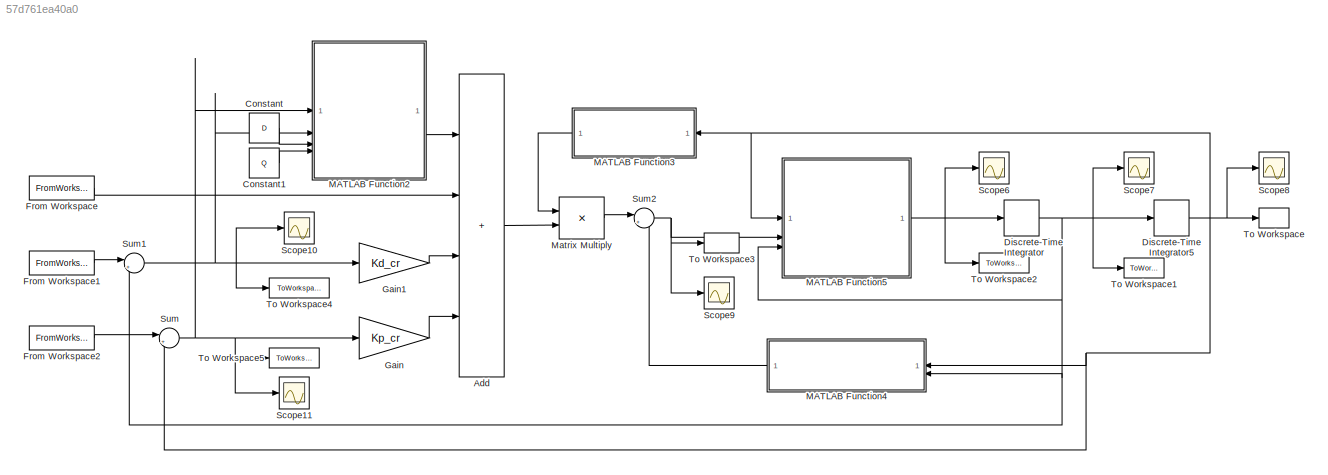
MODEL slx_57d761ea40a0
KIND model
CONFIG AbsTol = auto
CONFIG EnableMultiTasking = off
CONFIG FixedStep = auto
CONFIG MaxStep = auto
CONFIG MinStep = auto
CONFIG RelTol = 1e-3
CONFIG SampleTimeConstraint = Unconstrained
CONFIG SolverName = VariableStepAuto
CONFIG StartTime = 0.0
CONFIG StopTime = 40
BLOCK [Sum] Add
  IconShape = rectangular
  Inputs = ++++
BLOCK [Constant] Constant
  Value = D
  VectorParams1D = off
BLOCK [Constant] Constant1
  Value = Q
  VectorParams1D = off
BLOCK [DiscreteIntegrator] Discrete-Time Integrator
  ICPrevOutput = DiscIntNeverNeededParam
  ICPrevScaledInput = DiscIntNeverNeededParam
  InitialCondition = [0 0 0 0]'
  InitialConditionSetting = Auto
  SampleTime = -1
BLOCK [DiscreteIntegrator] Discrete-Time Integrator5
  ICPrevOutput = DiscIntNeverNeededParam
  ICPrevScaledInput = DiscIntNeverNeededParam
  InitialCondition = [theta1_0 theta2_0 -0.25 0]'
  InitialConditionSetting = Auto
  SampleTime = -1
BLOCK [FromWorkspace] From Workspace
  SampleTime = T
  VariableName = q_d_dot_dot
BLOCK [FromWorkspace] From Workspace1
  SampleTime = T
  VariableName = q_d_dot
BLOCK [FromWorkspace] From Workspace2
  SampleTime = T
  VariableName = q_d
BLOCK [Gain] Gain
  Gain = Kp_cr
  Multiplication = Matrix(K*u)
BLOCK [Gain] Gain1
  Gain = Kd_cr
  Multiplication = Matrix(K*u)
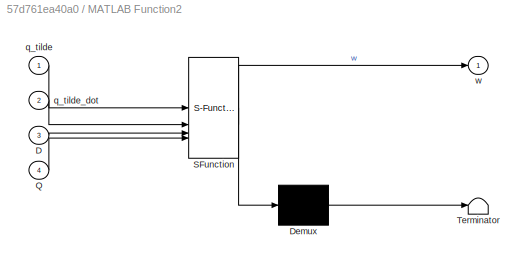
BLOCK [SubSystem] MATLAB Function2
  ErrorFcn = Stateflow.Translate.translate
  LibrarySourceBlock = simulink/User-Defined\nFunctions/MATLAB Function
  PermitHierarchicalResolution = ExplicitOnly
  SFBlockType = MATLAB Function
  TreatAsAtomicUnit = on
BLOCK [Demux] MATLAB Function2/ Demux 
  Outputs = 1
BLOCK [S-Function] MATLAB Function2/ SFunction 
  EnableBusSupport = on
  FunctionName = sf_sfun
  PortCounts = [4 2]
  SFcnIsStateOwnerBlock = off
  SFunctionDeploymentMode = off
  Tag = Stateflow S-Function 2
BLOCK [Terminator] MATLAB Function2/ Terminator 
BLOCK [Inport] MATLAB Function2/D
  Port = 3
BLOCK [Inport] MATLAB Function2/Q
  Port = 4
BLOCK [Inport] MATLAB Function2/q_tilde
BLOCK [Inport] MATLAB Function2/q_tilde_dot
  Port = 2
BLOCK [Outport] MATLAB Function2/w
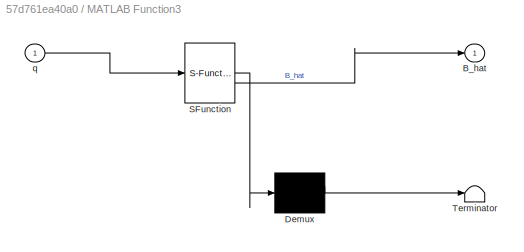
BLOCK [SubSystem] MATLAB Function3
  ErrorFcn = Stateflow.Translate.translate
  LibrarySourceBlock = simulink/User-Defined\nFunctions/MATLAB Function
  NameLocation = top
  PermitHierarchicalResolution = ExplicitOnly
  SFBlockType = MATLAB Function
  TreatAsAtomicUnit = on
BLOCK [Demux] MATLAB Function3/ Demux 
  Outputs = 1
BLOCK [S-Function] MATLAB Function3/ SFunction 
  EnableBusSupport = on
  FunctionName = sf_sfun
  PortCounts = [1 2]
  SFcnIsStateOwnerBlock = off
  SFunctionDeploymentMode = off
  Tag = Stateflow S-Function 1
BLOCK [Terminator] MATLAB Function3/ Terminator 
BLOCK [Outport] MATLAB Function3/B_hat
BLOCK [Inport] MATLAB Function3/q
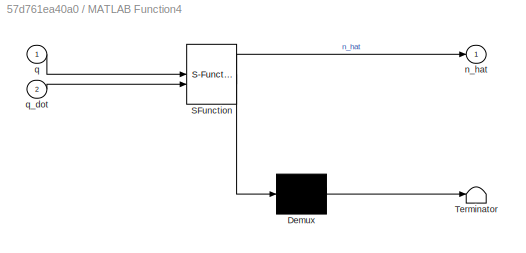
BLOCK [SubSystem] MATLAB Function4
  ErrorFcn = Stateflow.Translate.translate
  LibrarySourceBlock = simulink/User-Defined\nFunctions/MATLAB Function
  NameLocation = top
  PermitHierarchicalResolution = ExplicitOnly
  SFBlockType = MATLAB Function
  TreatAsAtomicUnit = on
BLOCK [Demux] MATLAB Function4/ Demux 
  Outputs = 1
BLOCK [S-Function] MATLAB Function4/ SFunction 
  EnableBusSupport = on
  FunctionName = sf_sfun
  PortCounts = [2 2]
  SFcnIsStateOwnerBlock = off
  SFunctionDeploymentMode = off
  Tag = Stateflow S-Function 3
BLOCK [Terminator] MATLAB Function4/ Terminator 
BLOCK [Outport] MATLAB Function4/n_hat
BLOCK [Inport] MATLAB Function4/q
BLOCK [Inport] MATLAB Function4/q_dot
  Port = 2
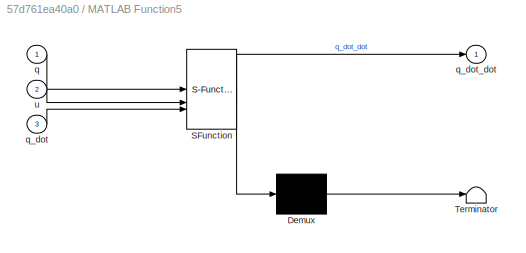
BLOCK [SubSystem] MATLAB Function5
  ErrorFcn = Stateflow.Translate.translate
  LibrarySourceBlock = simulink/User-Defined\nFunctions/MATLAB Function
  PermitHierarchicalResolution = ExplicitOnly
  SFBlockType = MATLAB Function
  TreatAsAtomicUnit = on
BLOCK [Demux] MATLAB Function5/ Demux 
  Outputs = 1
BLOCK [S-Function] MATLAB Function5/ SFunction 
  EnableBusSupport = on
  FunctionName = sf_sfun
  PortCounts = [3 2]
  SFcnIsStateOwnerBlock = off
  SFunctionDeploymentMode = off
  Tag = Stateflow S-Function 4
BLOCK [Terminator] MATLAB Function5/ Terminator 
BLOCK [Inport] MATLAB Function5/q
BLOCK [Inport] MATLAB Function5/q_dot
  Port = 3
BLOCK [Outport] MATLAB Function5/q_dot_dot
BLOCK [Inport] MATLAB Function5/u
  Port = 2
BLOCK [Product] Matrix Multiply
  Multiplication = Matrix(*)
BLOCK [Scope] Scope10
  Floating = off
  NumInputPorts = 1
  ScopeSpecificationString = Simulink.scopes.TimeScopeBlockCfg('CurrentConfiguration', extmgr.ConfigurationSet(extmgr.Configuration('Core','General UI',true),extmgr.Configuration('Core','Source UI',true),extmgr.Configuration('Sources','WiredSimulink',true,'DataLoggingVariableName','ScopeData5'),extmgr.Configuration('Visuals','Time Domain',true,'SerializedDisplays',{struct('MinYLimReal','-0.01289','MaxYLimReal','0.00249','YLab...<+1417ch>
BLOCK [Scope] Scope11
  Floating = off
  NumInputPorts = 1
  ScopeSpecificationString = Simulink.scopes.TimeScopeBlockCfg('CurrentConfiguration', extmgr.ConfigurationSet(extmgr.Configuration('Core','General UI',true),extmgr.Configuration('Core','Source UI',true),extmgr.Configuration('Sources','WiredSimulink',true,'DataLoggingVariableName','ScopeData6'),extmgr.Configuration('Visuals','Time Domain',true,'SerializedDisplays',{struct('MinYLimReal','-0.00027','MaxYLimReal','0.00021','YLab...<+1413ch>
BLOCK [Scope] Scope6
  Floating = off
  NumInputPorts = 1
  ScopeSpecificationString = Simulink.scopes.TimeScopeBlockCfg('CurrentConfiguration', extmgr.ConfigurationSet(extmgr.Configuration('Core','General UI',true),extmgr.Configuration('Core','Source UI',true),extmgr.Configuration('Sources','WiredSimulink',true,'DataLoggingVariableName','ScopeData1'),extmgr.Configuration('Visuals','Time Domain',true,'SerializedDisplays',{struct('MinYLimReal','-2.18153','MaxYLimReal','8.166','YLabel...<+1468ch>
BLOCK [Scope] Scope7
  Floating = off
  NumInputPorts = 1
  ScopeSpecificationString = Simulink.scopes.TimeScopeBlockCfg('CurrentConfiguration', extmgr.ConfigurationSet(extmgr.Configuration('Core','General UI',true),extmgr.Configuration('Core','Source UI',true),extmgr.Configuration('Sources','WiredSimulink',true,'DataLoggingVariableName','ScopeData2'),extmgr.Configuration('Visuals','Time Domain',true),extmgr.Configuration('Tools','Plot Navigation',true),extmgr.Configuration('Tools',...<+40ch>
BLOCK [Scope] Scope8
  Floating = off
  NumInputPorts = 1
  ScopeSpecificationString = Simulink.scopes.TimeScopeBlockCfg('CurrentConfiguration', extmgr.ConfigurationSet(extmgr.Configuration('Core','General UI',true),extmgr.Configuration('Core','Source UI',true),extmgr.Configuration('Sources','WiredSimulink',true,'DataLoggingVariableName','ScopeData3'),extmgr.Configuration('Visuals','Time Domain',true,'SerializedDisplays',{struct('MinYLimReal','-2.18153','MaxYLimReal','8.166','YLabel...<+1468ch>
BLOCK [Scope] Scope9
  Floating = off
  NumInputPorts = 1
  ScopeSpecificationString = Simulink.scopes.TimeScopeBlockCfg('CurrentConfiguration', extmgr.ConfigurationSet(extmgr.Configuration('Core','General UI',true),extmgr.Configuration('Core','Source UI',true),extmgr.Configuration('Sources','WiredSimulink',true,'DataLoggingVariableName','ScopeData4'),extmgr.Configuration('Visuals','Time Domain',true,'SerializedDisplays',{struct('MinYLimReal','-35.01798','MaxYLimReal','112.89089','Y...<+1427ch>
BLOCK [Sum] Sum
  Inputs = |+-
BLOCK [Sum] Sum1
  Inputs = |+-
BLOCK [Sum] Sum2
  Inputs = |++
BLOCK [ToWorkspace] To Workspace
  FixptAsFi = on
  MaxDataPoints = inf
  SampleTime = -1
  SaveFormat = Structure With Time
  VariableName = q
BLOCK [ToWorkspace] To Workspace1
  FixptAsFi = on
  MaxDataPoints = inf
  SampleTime = -1
  SaveFormat = Structure With Time
  VariableName = q_dot
BLOCK [ToWorkspace] To Workspace2
  FixptAsFi = on
  MaxDataPoints = inf
  SampleTime = -1
  SaveFormat = Structure With Time
  VariableName = q_dot_dot
BLOCK [ToWorkspace] To Workspace3
  FixptAsFi = on
  MaxDataPoints = inf
  SampleTime = -1
  SaveFormat = Structure With Time
  VariableName = tau
BLOCK [ToWorkspace] To Workspace4
  FixptAsFi = on
  MaxDataPoints = inf
  SampleTime = -1
  SaveFormat = Structure With Time
  VariableName = q_tilde_dot
BLOCK [ToWorkspace] To Workspace5
  FixptAsFi = on
  MaxDataPoints = inf
  SampleTime = -1
  SaveFormat = Structure With Time
  VariableName = q_tilde
LINE Add:1 -> Matrix Multiply:2
LINE Constant1:1 -> MATLAB Function2:4
LINE Constant:1 -> MATLAB Function2:3
NET Discrete-Time Integrator5:1 -> MATLAB Function3:1, MATLAB Function4:1, MATLAB Function5:1, Scope8:1, Sum:2, To Workspace:1
NET Discrete-Time Integrator:1 -> Discrete-Time Integrator5:1, MATLAB Function4:2, MATLAB Function5:3, Scope7:1, Sum1:2, To Workspace1:1
LINE From Workspace1:1 -> Sum1:1
LINE From Workspace2:1 -> Sum:1
LINE From Workspace:1 -> Add:2
LINE Gain1:1 -> Add:3
LINE Gain:1 -> Add:4
LINE MATLAB Function2:1 -> Add:1
LINE MATLAB Function3:1 -> Matrix Multiply:1
LINE MATLAB Function4:1 -> Sum2:2
NET MATLAB Function5:1 -> Discrete-Time Integrator:1, Scope6:1, To Workspace2:1
LINE Matrix Multiply:1 -> Sum2:1
NET Sum1:1 -> Gain1:1, MATLAB Function2:2, Scope10:1, To Workspace4:1
NET Sum2:1 -> MATLAB Function5:2, Scope9:1, To Workspace3:1
NET Sum:1 -> Gain:1, MATLAB Function2:1, Scope11:1, To Workspace5:1
note: NET lines group one-source signal fan-out (src -> all destinations, sorted); 1:1 wires keep LINE
CHART MATLAB Function3 states=1 transitions=1
  STATE_LABEL 'eML_blk_kernel()'
  STATE_LABEL 'SCRIPT:\nfunction B_hat = compensazione_B(q)\n\n    q1 = q(1);\n    q2 = q(2);\n    \n    B = [10*(cos(q1)/2 + (cos(q1)*cos(q2))/2 - (sin(q1)*sin(q2))/2)^2 + 20*(cos(q1)/2 + (cos(q1)*cos(q2))/4 - (sin(q1)*sin(q2))/4)^2 + 10*(sin(q1)/2 + (cos(q1)*sin(q2))/2 + (cos(q2)*sin(q1))/2)^2 + 20*(sin(q1)/2 + (cos(q1)*sin(q2))/4 + (cos(q2)*sin(q1))/4)^2 + (5*cos(q1)^2)/4 + (5*sin(q1)^2)/4 + 4513/500, 10*((cos(q1)*...<+1247ch>'
CHART MATLAB Function2 states=1 transitions=1
  STATE_LABEL 'eML_blk_kernel()'
  STATE_LABEL "SCRIPT:\nfunction w  = azione_robusta(q_tilde, q_tilde_dot, D, Q)\n\n    xi = [q_tilde; q_tilde_dot];\n\n    z = D'*Q*xi;\n\n    ro = 1;\n    epsilon = 0.1;\n\n    if(norm(z)>=epsilon)\n        w = ro*z/norm(z);\n    else \n        w = ro*z/epsilon;     \n    end\nend"
CHART MATLAB Function4 states=1 transitions=1
  STATE_LABEL 'eML_blk_kernel()'
  STATE_LABEL 'SCRIPT:\nfunction n_hat = compensazione_n(q,q_dot)\n\n    % n_hat compensa solo la coppia di gravità\n    n_hat=[0;0;98.1;0];\nend'
CHART MATLAB Function5 states=1 transitions=1
  STATE_LABEL 'eML_blk_kernel()'
  STATE_LABEL 'SCRIPT:\nfunction q_dot_dot = manipolatore(q, u, q_dot)\n\n    q1 = q(1);\n    q2 = q(2);\n    q3 = q(3);\n    q4 = q(4);\n    \n    q_dot1 = q_dot(1);\n    q_dot2 = q_dot(2);\n    q_dot3 = q_dot(3);\n    q_dot4 = q_dot(4);\n    \n    B = [14*(cos(q1)/2 + (cos(q1)*cos(q2))/2 - (sin(q1)*sin(q2))/2)^2 + 20*(cos(q1)/2 + (cos(q1)*cos(q2))/4 - (sin(q1)*sin(q2))/4)^2 + 14*(sin(q1)/2 + (cos(q1)*sin(q2))/2 + (cos(q2)*...<+3608ch>'
CHART  states=0 transitions=0
CHART  states=0 transitions=0
CHART  states=0 transitions=0
CHART  states=0 transitions=0
